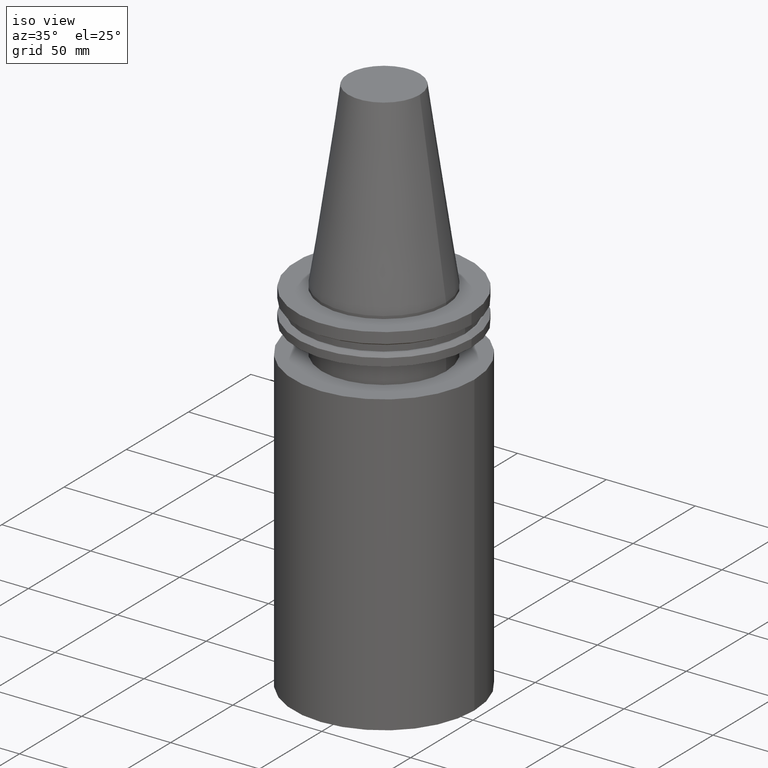
[diagram: clean part render]
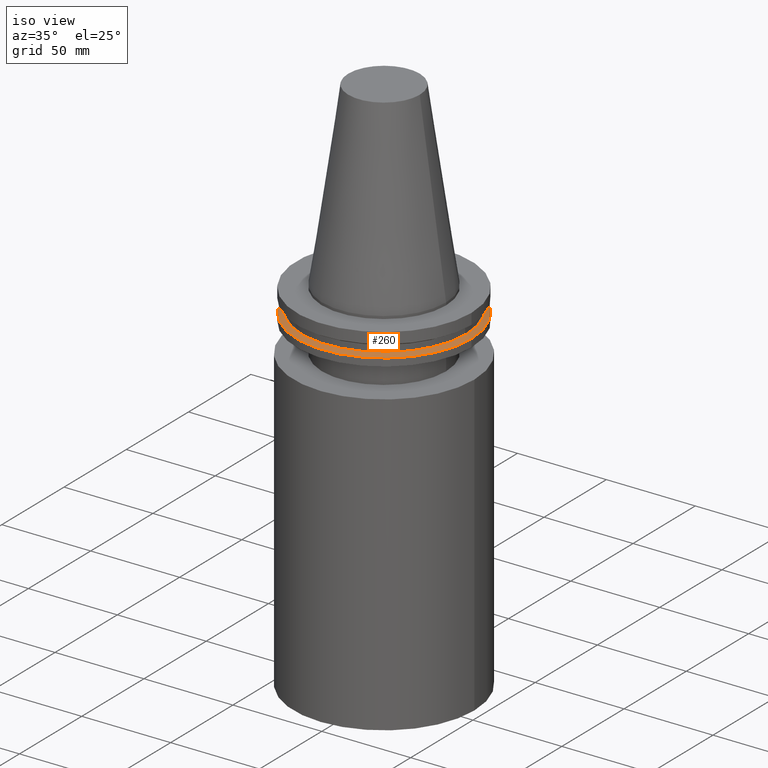
[diagram: same view with one face highlighted and labeled with its STEP entity id]
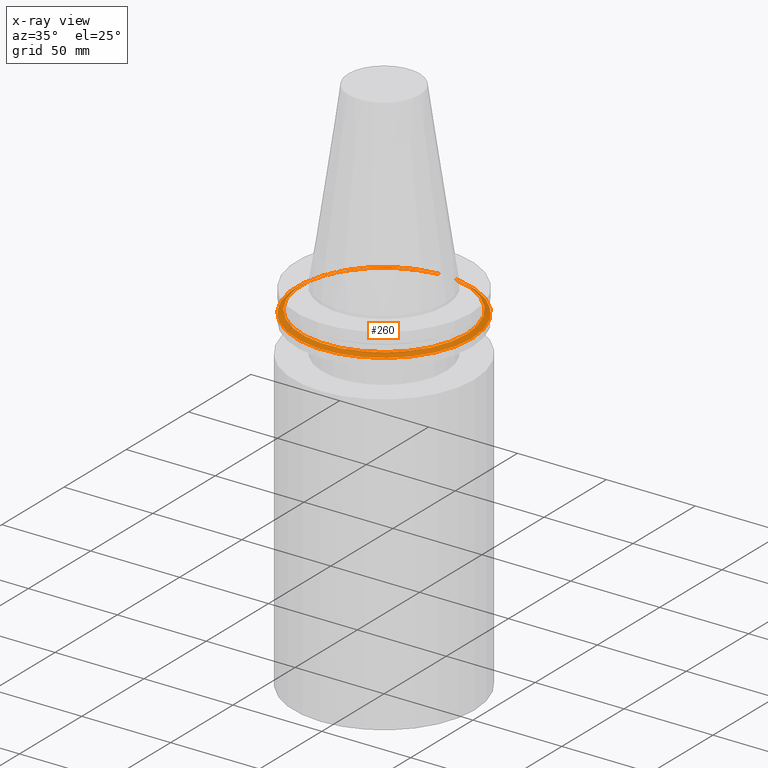
[diagram: x-ray of the same camera — body ghosted, the highlighted face saturated]
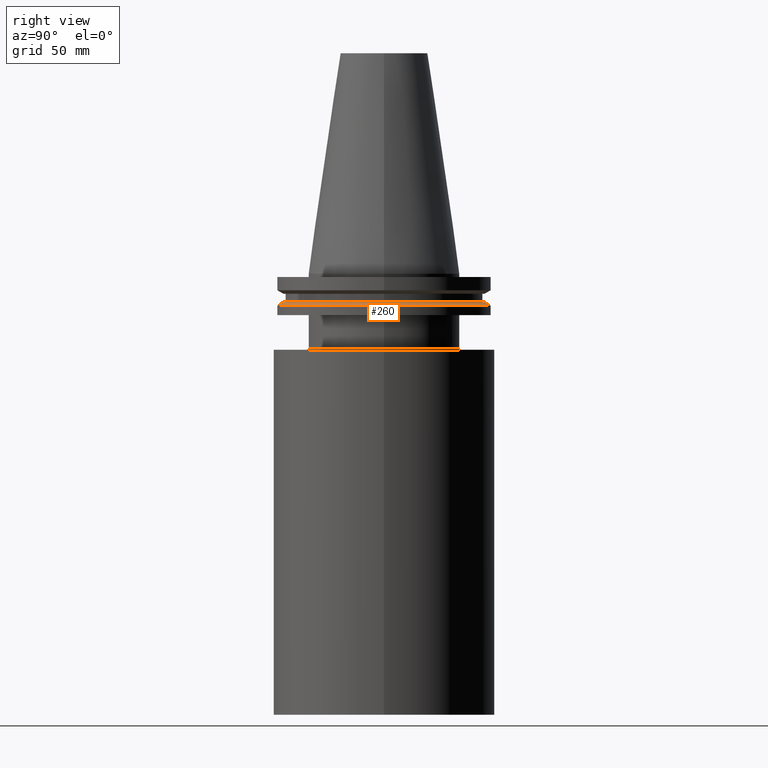
[diagram: same view with one face highlighted and labeled with its STEP entity id]
A machine part, iso view. The second image highlights one B-rep face of the part: STEP entity #260.
The next image is the same camera in x-ray: the body ghosted, the highlighted face saturated — about 3% of this face is hidden behind the body in this view.
A second angle (right view) of the same face is appended — the face is thin or edge-on in the first view.
In plain terms, the highlighted conical surface has half-angle 60 deg.
Its self-contained STEP definition (entity closure, byte-faithful):
#26 = FACE_BOUND ( 'NONE', #269, .T. ) ;
#29 = CARTESIAN_POINT ( 'NONE',  ( 0.000000000000000000, 0.000000000000000000, -14.65761014474876944 ) ) ;
#43 = AXIS2_PLACEMENT_3D ( 'NONE', #168, #198, #257 ) ;
#58 = CARTESIAN_POINT ( 'NONE',  ( 0.000000000000000000, 0.000000000000000000, -14.65761014474876944 ) ) ;
#70 = VERTEX_POINT ( 'NONE', #151 ) ;
#85 = DIRECTION ( 'NONE',  ( -0.000000000000000000, -0.000000000000000000, 1.000000000000000000 ) ) ;
#118 = EDGE_CURVE ( 'NONE', #123, #123, #163, .T. ) ;
#123 = VERTEX_POINT ( 'NONE', #160 ) ;
#133 = EDGE_LOOP ( 'NONE', ( #223 ) ) ;
#146 = DIRECTION ( 'NONE',  ( 0.000000000000000000, 0.000000000000000000, -1.000000000000000000 ) ) ;
#149 = DIRECTION ( 'NONE',  ( -1.000000000000000000, 0.000000000000000000, 0.000000000000000000 ) ) ;
#151 = CARTESIAN_POINT ( 'NONE',  ( 49.21499999999998920, 0.000000000000000000, -14.65761014474876944 ) ) ;
#160 = CARTESIAN_POINT ( 'NONE',  ( 46.43919780457007818, 0.000000000000000000, -13.05499999999999794 ) ) ;
#163 = CIRCLE ( 'NONE', #43, 46.43919780457007818 ) ;
#168 = CARTESIAN_POINT ( 'NONE',  ( 0.000000000000000000, 0.000000000000000000, -13.05499999999999794 ) ) ;
#177 = DIRECTION ( 'NONE',  ( 1.000000000000000000, 0.000000000000000000, 0.000000000000000000 ) ) ;
#198 = DIRECTION ( 'NONE',  ( -0.000000000000000000, -0.000000000000000000, 1.000000000000000000 ) ) ;
#204 = EDGE_CURVE ( 'NONE', #70, #70, #295, .T. ) ;
#223 = ORIENTED_EDGE ( 'NONE', *, *, #204, .T. ) ;
#226 = ORIENTED_EDGE ( 'NONE', *, *, #118, .F. ) ;
#257 = DIRECTION ( 'NONE',  ( 1.000000000000000000, 0.000000000000000000, 0.000000000000000000 ) ) ;
#260 = ADVANCED_FACE ( 'NONE', ( #26, #333 ), #335, .T. ) ;
#269 = EDGE_LOOP ( 'NONE', ( #226 ) ) ;
#295 = CIRCLE ( 'NONE', #384, 49.21499999999998920 ) ;
#314 = AXIS2_PLACEMENT_3D ( 'NONE', #29, #146, #149 ) ;
#333 = FACE_OUTER_BOUND ( 'NONE', #133, .T. ) ;
#335 = CONICAL_SURFACE ( 'NONE', #314, 49.21499999999998920, 1.047197551196554333 ) ;
#384 = AXIS2_PLACEMENT_3D ( 'NONE', #58, #85, #177 ) ;